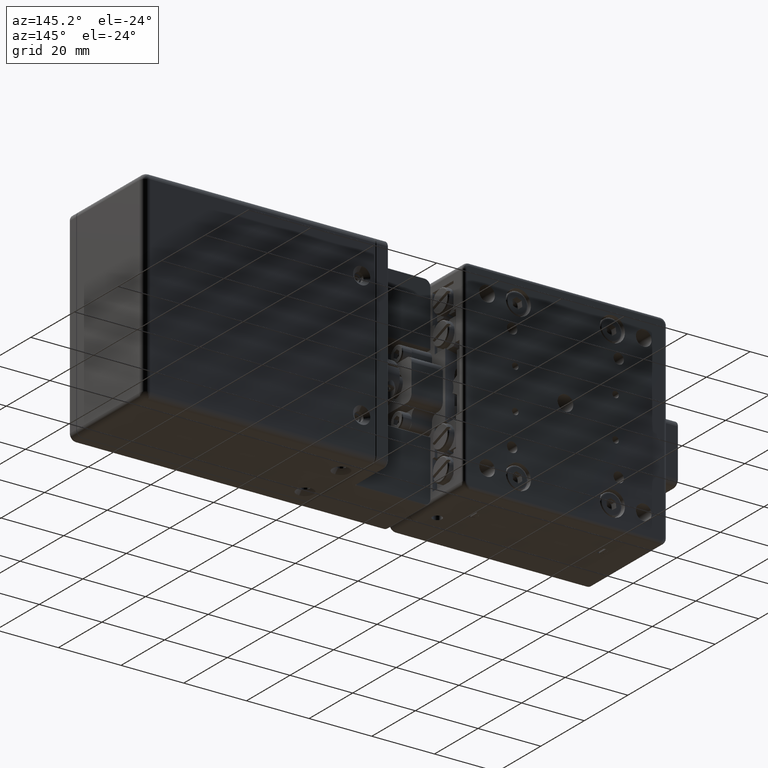
[diagram: clean part render]
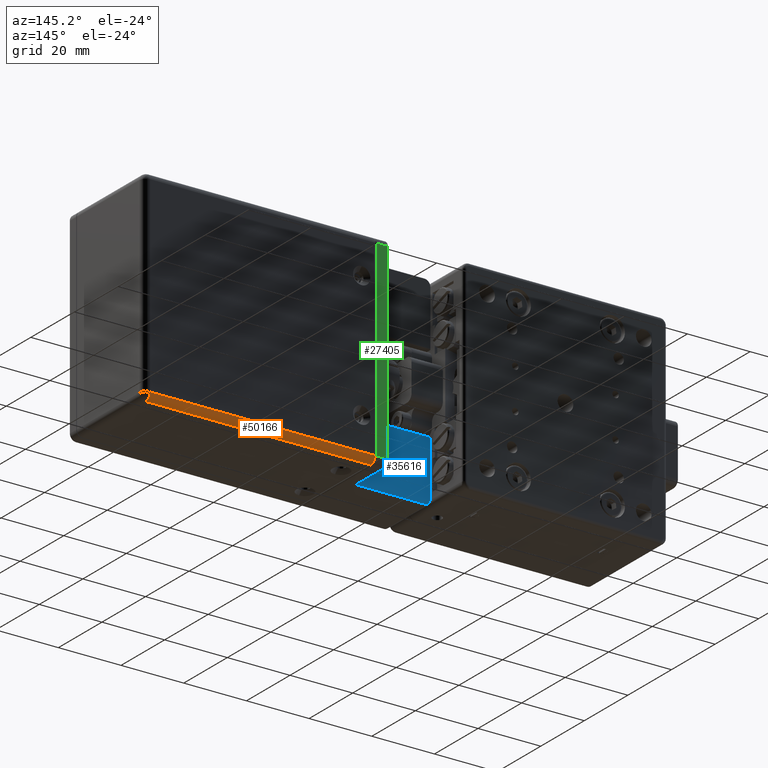
[diagram: same view with three faces highlighted in distinct colors, each labeled with its STEP entity id]
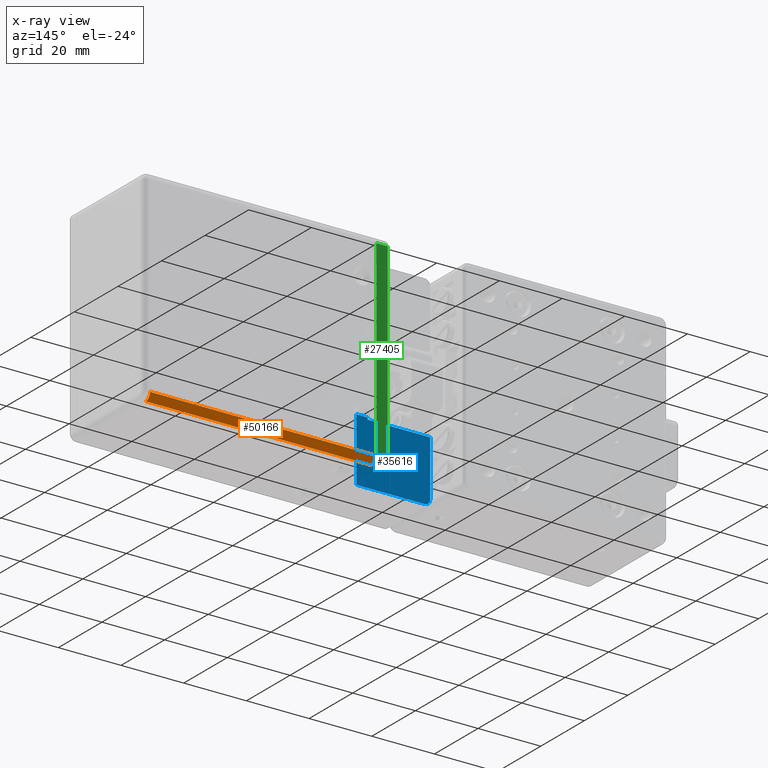
[diagram: x-ray of the same camera — body ghosted, the three highlighted faces saturated]
A machine part, auxiliary view with three faces highlighted in distinct colors.
The next image is the same camera in x-ray (body ghosted, the three faces saturated) — at least one of them is partly hidden behind the body in this view.
Their STEP definitions:

[orange] entity #50166 — the highlighted cylindrical surface (edge-blend (fillet) strip) has radius 2 mm, axis along (1, -0, 0).
#318 = CARTESIAN_POINT ( 'NONE',  ( -43.98615177131394205, 18.00221016956369979, -30.50000000000000000 ) ) ;
#2162 = CARTESIAN_POINT ( 'NONE',  ( -43.78615177131394631, 20.00221016956369979, -30.50000000000000000 ) ) ;
#2436 = DIRECTION ( 'NONE',  ( 1.000000000000000000, 0.000000000000000000, 1.370431546021677851E-16 ) ) ;
#2596 = EDGE_LOOP ( 'NONE', ( #51258, #44288, #49443, #51671 ) ) ;
#3641 = DIRECTION ( 'NONE',  ( 1.000000000000000000, 0.000000000000000000, 1.370431546021677851E-16 ) ) ;
#4339 = EDGE_CURVE ( 'NONE', #8175, #8224, #10252, .T. ) ;
#6391 = VERTEX_POINT ( 'NONE', #9410 ) ;
#6708 = CARTESIAN_POINT ( 'NONE',  ( -43.78615177131394631, 18.00221016956369979, -30.50000000000000000 ) ) ;
#8175 = VERTEX_POINT ( 'NONE', #23918 ) ;
#8224 = VERTEX_POINT ( 'NONE', #2162 ) ;
#9410 = CARTESIAN_POINT ( 'NONE',  ( -43.78615177131394631, 18.00221016956369979, -32.50000000000000000 ) ) ;
#9563 = DIRECTION ( 'NONE',  ( 1.000000000000000000, -6.463462497152439677E-17, -5.049451847640599297E-17 ) ) ;
#10252 = LINE ( 'NONE', #52921, #51889 ) ;
#11466 = EDGE_CURVE ( 'NONE', #6391, #8224, #54512, .T. ) ;
#12769 = FACE_OUTER_BOUND ( 'NONE', #2596, .T. ) ;
#14064 = CARTESIAN_POINT ( 'NONE',  ( 30.01384822868609703, 18.00221016956369979, -32.50000000000000000 ) ) ;
#15058 = AXIS2_PLACEMENT_3D ( 'NONE', #25103, #3641, #33591 ) ;
#16004 = DIRECTION ( 'NONE',  ( 0.000000000000000000, -1.000000000000000000, 0.000000000000000000 ) ) ;
#17452 = LINE ( 'NONE', #14064, #55532 ) ;
#23918 = CARTESIAN_POINT ( 'NONE',  ( 28.01384822868609703, 20.00221016956369979, -30.50000000000000000 ) ) ;
#25092 = CIRCLE ( 'NONE', #15058, 2.000000000000001776 ) ;
#25103 = CARTESIAN_POINT ( 'NONE',  ( 28.01384822868609703, 18.00221016956369979, -30.50000000000000000 ) ) ;
#26035 = CYLINDRICAL_SURFACE ( 'NONE', #37809, 2.000000000000001776 ) ;
#26663 = EDGE_CURVE ( 'NONE', #6391, #28095, #17452, .T. ) ;
#28095 = VERTEX_POINT ( 'NONE', #54827 ) ;
#30173 = AXIS2_PLACEMENT_3D ( 'NONE', #6708, #2436, #16004 ) ;
#33591 = DIRECTION ( 'NONE',  ( 0.000000000000000000, -1.000000000000000000, 0.000000000000000000 ) ) ;
#37809 = AXIS2_PLACEMENT_3D ( 'NONE', #318, #39598, #48073 ) ;
#39598 = DIRECTION ( 'NONE',  ( 1.000000000000000000, -6.463462497152439677E-17, 0.000000000000000000 ) ) ;
#39640 = DIRECTION ( 'NONE',  ( -1.000000000000000000, 6.463462497152439677E-17, 5.049451847640599297E-17 ) ) ;
#44288 = ORIENTED_EDGE ( 'NONE', *, *, #11466, .T. ) ;
#47819 = EDGE_CURVE ( 'NONE', #28095, #8175, #25092, .T. ) ;
#48073 = DIRECTION ( 'NONE',  ( 0.000000000000000000, 0.000000000000000000, -1.000000000000000000 ) ) ;
#49443 = ORIENTED_EDGE ( 'NONE', *, *, #4339, .F. ) ;
#50166 = ADVANCED_FACE ( 'NONE', ( #12769 ), #26035, .T. ) ;
#51258 = ORIENTED_EDGE ( 'NONE', *, *, #26663, .F. ) ;
#51671 = ORIENTED_EDGE ( 'NONE', *, *, #47819, .F. ) ;
#51889 = VECTOR ( 'NONE', #39640, 1000.000000000000000 ) ;
#52921 = CARTESIAN_POINT ( 'NONE',  ( -43.98615177131389231, 20.00221016956369979, -30.50000000000000000 ) ) ;
#54512 = CIRCLE ( 'NONE', #30173, 2.000000000000001776 ) ;
#54827 = CARTESIAN_POINT ( 'NONE',  ( 28.01384822868609703, 18.00221016956369979, -32.50000000000000000 ) ) ;
#55532 = VECTOR ( 'NONE', #9563, 1000.000000000000000 ) ;

[blue] entity #35616 — the highlighted planar face has unit normal (0, 1, -0).
#167 = VERTEX_POINT ( 'NONE', #20448 ) ;
#745 = EDGE_CURVE ( 'NONE', #23708, #23917, #8664, .T. ) ;
#2526 = LINE ( 'NONE', #45476, #40465 ) ;
#3029 = CARTESIAN_POINT ( 'NONE',  ( -48.18615177131389515, 5.002210169563720221, -32.30000000000000426 ) ) ;
#3121 = DIRECTION ( 'NONE',  ( 1.125190467906409909E-16, 0.000000000000000000, 1.000000000000000000 ) ) ;
#3947 = VECTOR ( 'NONE', #55525, 1000.000000000000000 ) ;
#7927 = CARTESIAN_POINT ( 'NONE',  ( -71.78615177131389657, 5.002210169563720221, -12.50000000000000000 ) ) ;
#8664 = CIRCLE ( 'NONE', #34842, 1.800000000000002931 ) ;
#10197 = ORIENTED_EDGE ( 'NONE', *, *, #55216, .T. ) ;
#11166 = CARTESIAN_POINT ( 'NONE',  ( -71.78615177131389657, 5.002210169563720221, -12.69999999999999929 ) ) ;
#13184 = ORIENTED_EDGE ( 'NONE', *, *, #745, .T. ) ;
#14791 = ORIENTED_EDGE ( 'NONE', *, *, #17265, .T. ) ;
#16680 = LINE ( 'NONE', #7927, #27235 ) ;
#16683 = VECTOR ( 'NONE', #23651, 1000.000000000000000 ) ;
#17260 = CARTESIAN_POINT ( 'NONE',  ( -69.98615177131389942, 5.002210169563720221, -30.50000000000000000 ) ) ;
#17265 = EDGE_CURVE ( 'NONE', #51464, #53838, #22099, .T. ) ;
#19552 = CARTESIAN_POINT ( 'NONE',  ( -69.98615177131389942, 5.002210169563720221, -32.30000000000000426 ) ) ;
#19957 = VERTEX_POINT ( 'NONE', #3029 ) ;
#20401 = DIRECTION ( 'NONE',  ( 1.000000000000000000, -4.889017512809649444E-17, 0.000000000000000000 ) ) ;
#20448 = CARTESIAN_POINT ( 'NONE',  ( -51.78615177131389657, 5.002210169563720221, -12.69999999999999929 ) ) ;
#21611 = CARTESIAN_POINT ( 'NONE',  ( -48.18615177131389515, 5.002210169563720221, -12.06066965893310083 ) ) ;
#22095 = CARTESIAN_POINT ( 'NONE',  ( -69.98615177131389942, 5.002210169563720221, -32.30000000000000426 ) ) ;
#22099 = LINE ( 'NONE', #34004, #28315 ) ;
#23651 = DIRECTION ( 'NONE',  ( 1.125190467906409909E-16, 0.000000000000000000, 1.000000000000000000 ) ) ;
#23708 = VERTEX_POINT ( 'NONE', #22095 ) ;
#23917 = VERTEX_POINT ( 'NONE', #29333 ) ;
#25197 = CARTESIAN_POINT ( 'NONE',  ( -71.98615177131389942, 5.002210169563720221, -32.50000000000000000 ) ) ;
#25328 = ORIENTED_EDGE ( 'NONE', *, *, #43503, .T. ) ;
#26103 = EDGE_LOOP ( 'NONE', ( #48736, #14791, #10197, #48002, #13184, #52022, #25328 ) ) ;
#26689 = VECTOR ( 'NONE', #45833, 1000.000000000000000 ) ;
#27235 = VECTOR ( 'NONE', #3121, 1000.000000000000000 ) ;
#28315 = VECTOR ( 'NONE', #55745, 1000.000000000000000 ) ;
#29175 = PLANE ( 'NONE',  #40765 ) ;
#29333 = CARTESIAN_POINT ( 'NONE',  ( -71.78615177131389657, 5.002210169563720221, -30.50000000000000000 ) ) ;
#29458 = FACE_OUTER_BOUND ( 'NONE', #26103, .T. ) ;
#30356 = EDGE_CURVE ( 'NONE', #23917, #46333, #16680, .T. ) ;
#31322 = LINE ( 'NONE', #45138, #16683 ) ;
#33391 = DIRECTION ( 'NONE',  ( 4.889017512809649444E-17, 1.000000000000000000, 0.000000000000000000 ) ) ;
#33694 = DIRECTION ( 'NONE',  ( 4.889017512809649444E-17, 1.000000000000000000, -5.501075902840929853E-33 ) ) ;
#34004 = CARTESIAN_POINT ( 'NONE',  ( -47.98615177131389942, 5.002210169563720221, -12.06066965893310083 ) ) ;
#34237 = DIRECTION ( 'NONE',  ( 0.000000000000000000, 0.000000000000000000, -1.000000000000000000 ) ) ;
#34842 = AXIS2_PLACEMENT_3D ( 'NONE', #17260, #33391, #34237 ) ;
#35616 = ADVANCED_FACE ( 'NONE', ( #29458 ), #29175, .T. ) ;
#37848 = DIRECTION ( 'NONE',  ( -1.125190467906409909E-16, 0.000000000000000000, -1.000000000000000000 ) ) ;
#38574 = LINE ( 'NONE', #43352, #3947 ) ;
#40465 = VECTOR ( 'NONE', #37848, 1000.000000000000000 ) ;
#40765 = AXIS2_PLACEMENT_3D ( 'NONE', #25197, #33694, #20401 ) ;
#42800 = CARTESIAN_POINT ( 'NONE',  ( -51.78615177131389657, 5.002210169563720221, -12.06066965893310083 ) ) ;
#43352 = CARTESIAN_POINT ( 'NONE',  ( -51.98615177131389942, 5.002210169563720221, -12.69999999999999929 ) ) ;
#43503 = EDGE_CURVE ( 'NONE', #46333, #167, #38574, .T. ) ;
#44630 = EDGE_CURVE ( 'NONE', #167, #51464, #31322, .T. ) ;
#45138 = CARTESIAN_POINT ( 'NONE',  ( -51.78615177131389657, 5.002210169563720221, -32.50000000000000000 ) ) ;
#45476 = CARTESIAN_POINT ( 'NONE',  ( -48.18615177131389515, 5.002210169563720221, -32.50000000000000000 ) ) ;
#45537 = EDGE_CURVE ( 'NONE', #19957, #23708, #53475, .T. ) ;
#45833 = DIRECTION ( 'NONE',  ( -1.000000000000000000, 4.889017512809649444E-17, -9.945633124094282019E-18 ) ) ;
#46333 = VERTEX_POINT ( 'NONE', #11166 ) ;
#48002 = ORIENTED_EDGE ( 'NONE', *, *, #45537, .T. ) ;
#48736 = ORIENTED_EDGE ( 'NONE', *, *, #44630, .T. ) ;
#51464 = VERTEX_POINT ( 'NONE', #42800 ) ;
#52022 = ORIENTED_EDGE ( 'NONE', *, *, #30356, .T. ) ;
#53475 = LINE ( 'NONE', #19552, #26689 ) ;
#53838 = VERTEX_POINT ( 'NONE', #21611 ) ;
#55216 = EDGE_CURVE ( 'NONE', #53838, #19957, #2526, .T. ) ;
#55525 = DIRECTION ( 'NONE',  ( 1.000000000000000000, -4.889017512809649444E-17, -1.125190467906409909E-16 ) ) ;
#55745 = DIRECTION ( 'NONE',  ( 1.000000000000000000, -4.889017512809649444E-17, -1.125190467906409909E-16 ) ) ;

[green] entity #27405 — the highlighted planar face has unit normal (-0, -1, 0).
#1139 = VERTEX_POINT ( 'NONE', #44036 ) ;
#1185 = EDGE_CURVE ( 'NONE', #1139, #19469, #9847, .T. ) ;
#3676 = CARTESIAN_POINT ( 'NONE',  ( -47.78615177131390368, 20.00221016956369979, -32.50000000000000000 ) ) ;
#4152 = EDGE_CURVE ( 'NONE', #15825, #4964, #50671, .T. ) ;
#4964 = VERTEX_POINT ( 'NONE', #25389 ) ;
#6729 = ORIENTED_EDGE ( 'NONE', *, *, #4152, .T. ) ;
#7364 = LINE ( 'NONE', #3676, #22659 ) ;
#8745 = CARTESIAN_POINT ( 'NONE',  ( -71.98615177131389942, 20.00221016956369979, 30.50000000000000000 ) ) ;
#9847 = LINE ( 'NONE', #8745, #43907 ) ;
#10860 = CARTESIAN_POINT ( 'NONE',  ( -71.98615177131389942, 20.00221016956369979, -30.50000000000000000 ) ) ;
#15688 = CARTESIAN_POINT ( 'NONE',  ( -71.98615177131389942, 20.00221016956369979, -32.50000000000000000 ) ) ;
#15825 = VERTEX_POINT ( 'NONE', #27187 ) ;
#15935 = DIRECTION ( 'NONE',  ( -1.000000000000000000, 4.889017512809649444E-17, -9.945633124094282019E-18 ) ) ;
#18462 = EDGE_LOOP ( 'NONE', ( #45762, #29930, #6729, #49272 ) ) ;
#19469 = VERTEX_POINT ( 'NONE', #34663 ) ;
#19633 = FACE_OUTER_BOUND ( 'NONE', #18462, .T. ) ;
#22659 = VECTOR ( 'NONE', #47184, 1000.000000000000000 ) ;
#25389 = CARTESIAN_POINT ( 'NONE',  ( -47.78615177131390368, 20.00221016956369979, -30.50000000000000000 ) ) ;
#27187 = CARTESIAN_POINT ( 'NONE',  ( -44.18615177131390226, 20.00221016956369979, -30.50000000000000000 ) ) ;
#27405 = ADVANCED_FACE ( 'NONE', ( #19633 ), #41390, .F. ) ;
#29930 = ORIENTED_EDGE ( 'NONE', *, *, #54888, .T. ) ;
#34663 = CARTESIAN_POINT ( 'NONE',  ( -44.18615177131390226, 20.00221016956369979, 30.50000000000000000 ) ) ;
#35567 = DIRECTION ( 'NONE',  ( 1.000000000000000000, -4.889017512809649444E-17, -1.125190467906409909E-16 ) ) ;
#36622 = DIRECTION ( 'NONE',  ( -1.000000000000000000, 4.889017512809649444E-17, 0.000000000000000000 ) ) ;
#39821 = DIRECTION ( 'NONE',  ( -4.889017512809649444E-17, -1.000000000000000000, 5.501075902840929853E-33 ) ) ;
#40210 = AXIS2_PLACEMENT_3D ( 'NONE', #15688, #39821, #36622 ) ;
#41390 = PLANE ( 'NONE',  #40210 ) ;
#43907 = VECTOR ( 'NONE', #35567, 1000.000000000000000 ) ;
#44036 = CARTESIAN_POINT ( 'NONE',  ( -47.78615177131390368, 20.00221016956369979, 30.50000000000000000 ) ) ;
#45484 = VECTOR ( 'NONE', #15935, 1000.000000000000000 ) ;
#45762 = ORIENTED_EDGE ( 'NONE', *, *, #1185, .T. ) ;
#47184 = DIRECTION ( 'NONE',  ( 1.125190467906409909E-16, 0.000000000000000000, 1.000000000000000000 ) ) ;
#47918 = DIRECTION ( 'NONE',  ( -1.125190467906409909E-16, 0.000000000000000000, -1.000000000000000000 ) ) ;
#49272 = ORIENTED_EDGE ( 'NONE', *, *, #52293, .T. ) ;
#50671 = LINE ( 'NONE', #10860, #45484 ) ;
#52167 = LINE ( 'NONE', #52437, #52176 ) ;
#52176 = VECTOR ( 'NONE', #47918, 1000.000000000000000 ) ;
#52293 = EDGE_CURVE ( 'NONE', #4964, #1139, #7364, .T. ) ;
#52437 = CARTESIAN_POINT ( 'NONE',  ( -44.18615177131390226, 20.00221016956369979, -30.50000000000000000 ) ) ;
#54888 = EDGE_CURVE ( 'NONE', #19469, #15825, #52167, .T. ) ;